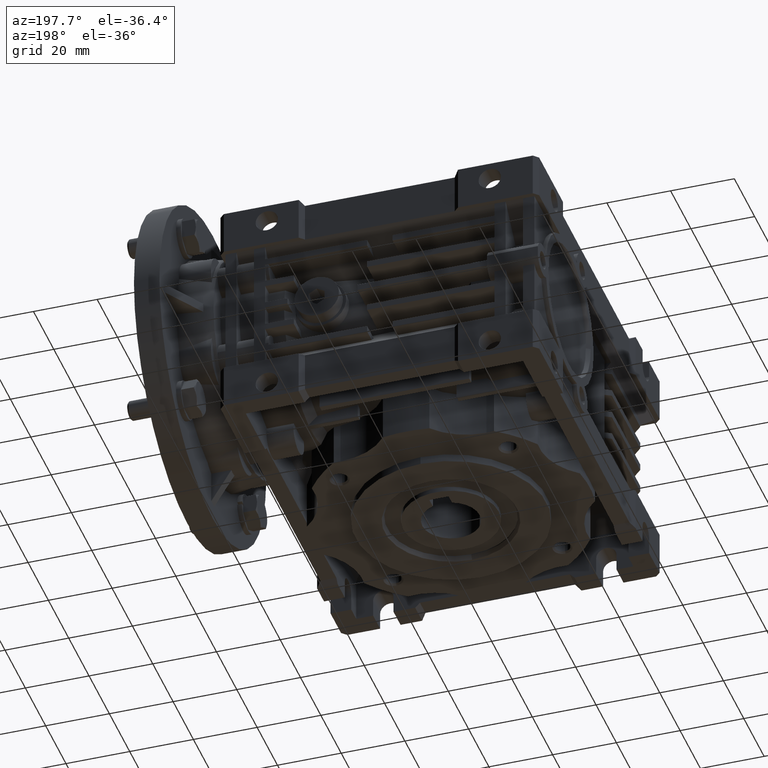
[diagram: clean part render]
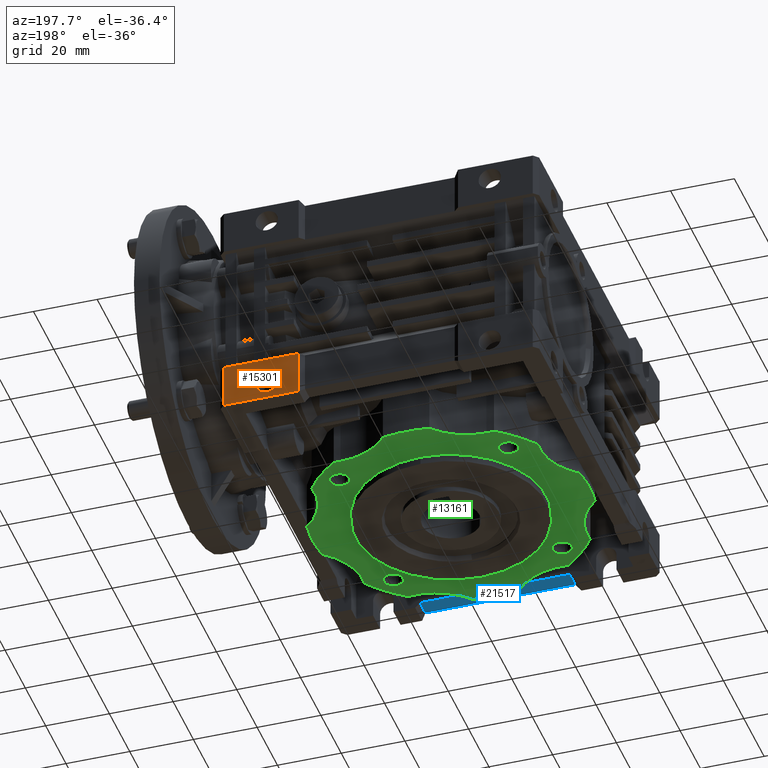
[diagram: same view with three faces highlighted in distinct colors, each labeled with its STEP entity id]
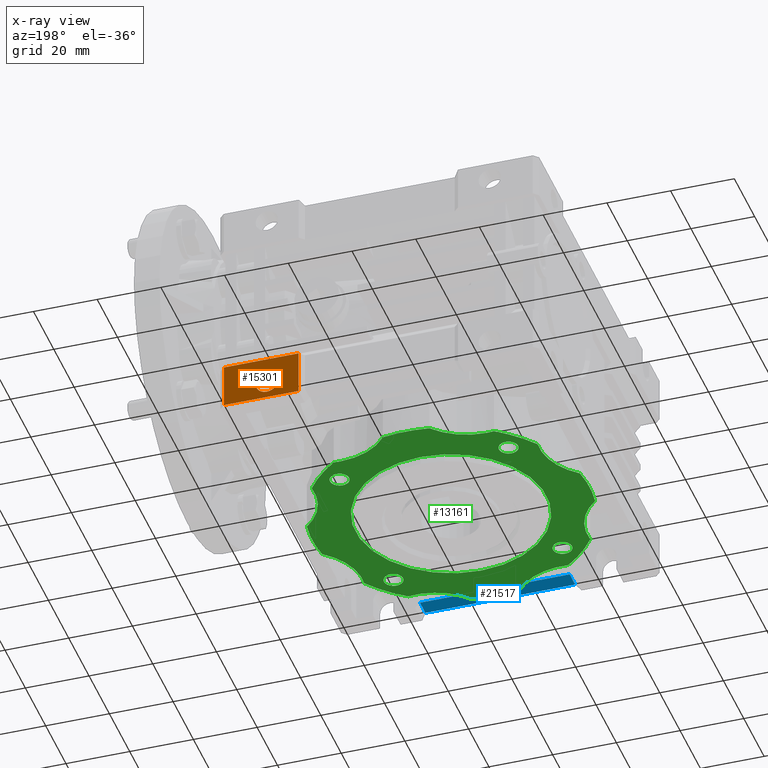
[diagram: x-ray of the same camera — body ghosted, the three highlighted faces saturated]
A machine part, auxiliary view with three faces highlighted in distinct colors.
The next image is the same camera in x-ray (body ghosted, the three faces saturated) — at least one of them is partly hidden behind the body in this view.
Their STEP definitions:

[orange] entity #15301 — the highlighted planar face has unit normal (0, -1, 0).
#170 = CARTESIAN_POINT ( 'NONE',  ( 35.00000000000000000, 71.50000000000000000, -30.00000000000000000 ) ) ;
#240 = DIRECTION ( 'NONE',  ( 0.000000000000000000, 0.000000000000000000, -1.000000000000000000 ) ) ;
#820 = FACE_OUTER_BOUND ( 'NONE', #12869, .T. ) ;
#2917 = DIRECTION ( 'NONE',  ( -1.000000000000000000, 0.000000000000000000, 0.000000000000000000 ) ) ;
#3432 = ORIENTED_EDGE ( 'NONE', *, *, #12341, .T. ) ;
#3450 = CARTESIAN_POINT ( 'NONE',  ( 35.00000000000000000, 71.50000000000000000, -30.00000000000000000 ) ) ;
#3746 = LINE ( 'NONE', #13194, #11059 ) ;
#5382 = CARTESIAN_POINT ( 'NONE',  ( 25.00000000000000000, 71.50000000000000000, -21.50000000000000000 ) ) ;
#5446 = PLANE ( 'NONE',  #15915 ) ;
#6375 = DIRECTION ( 'NONE',  ( 1.000000000000000000, 0.000000000000000000, 0.000000000000000000 ) ) ;
#8641 = VERTEX_POINT ( 'NONE', #20218 ) ;
#8704 = CARTESIAN_POINT ( 'NONE',  ( 35.00000000000000000, 71.50000000000000000, -33.50000000000000000 ) ) ;
#8834 = EDGE_LOOP ( 'NONE', ( #3432, #13708 ) ) ;
#9096 = CARTESIAN_POINT ( 'NONE',  ( 25.00000000000000000, 71.50000000000000000, -35.50000000000000000 ) ) ;
#9365 = VERTEX_POINT ( 'NONE', #26944 ) ;
#10057 = EDGE_CURVE ( 'NONE', #12918, #8641, #21300, .T. ) ;
#11059 = VECTOR ( 'NONE', #6375, 1000.000000000000000 ) ;
#11415 = LINE ( 'NONE', #20829, #16215 ) ;
#12341 = EDGE_CURVE ( 'NONE', #27501, #29313, #13606, .T. ) ;
#12806 = CARTESIAN_POINT ( 'NONE',  ( 25.00000000000000000, 71.50000000000000000, -21.50000000000000000 ) ) ;
#12869 = EDGE_LOOP ( 'NONE', ( #15129, #19123, #28783, #20358 ) ) ;
#12894 = DIRECTION ( 'NONE',  ( 0.000000000000000000, -1.000000000000000000, 0.000000000000000000 ) ) ;
#12918 = VERTEX_POINT ( 'NONE', #12806 ) ;
#13194 = CARTESIAN_POINT ( 'NONE',  ( 0.000000000000000000, 71.50000000000000000, -35.50000000000000000 ) ) ;
#13606 = CIRCLE ( 'NONE', #22995, 3.499999999999999556 ) ;
#13708 = ORIENTED_EDGE ( 'NONE', *, *, #27151, .T. ) ;
#14978 = LINE ( 'NONE', #5382, #28491 ) ;
#15129 = ORIENTED_EDGE ( 'NONE', *, *, #27878, .T. ) ;
#15301 = ADVANCED_FACE ( 'NONE', ( #25778, #820 ), #5446, .F. ) ;
#15915 = AXIS2_PLACEMENT_3D ( 'NONE', #30569, #16329, #18654 ) ;
#16215 = VECTOR ( 'NONE', #240, 1000.000000000000000 ) ;
#16329 = DIRECTION ( 'NONE',  ( 0.000000000000000000, -1.000000000000000000, 0.000000000000000000 ) ) ;
#17249 = EDGE_CURVE ( 'NONE', #8641, #19751, #3746, .T. ) ;
#18090 = CARTESIAN_POINT ( 'NONE',  ( 48.50000000000000000, 71.50000000000000000, -35.50000000000000000 ) ) ;
#18646 = AXIS2_PLACEMENT_3D ( 'NONE', #170, #21357, #19022 ) ;
#18654 = DIRECTION ( 'NONE',  ( 0.000000000000000000, 0.000000000000000000, -1.000000000000000000 ) ) ;
#18978 = CARTESIAN_POINT ( 'NONE',  ( 35.00000000000000000, 71.50000000000000000, -26.50000000000000000 ) ) ;
#19022 = DIRECTION ( 'NONE',  ( 0.000000000000000000, 0.000000000000000000, 1.000000000000000000 ) ) ;
#19123 = ORIENTED_EDGE ( 'NONE', *, *, #17249, .F. ) ;
#19751 = VERTEX_POINT ( 'NONE', #18090 ) ;
#20218 = CARTESIAN_POINT ( 'NONE',  ( 25.00000000000000000, 71.50000000000000000, -35.50000000000000000 ) ) ;
#20358 = ORIENTED_EDGE ( 'NONE', *, *, #22069, .F. ) ;
#20829 = CARTESIAN_POINT ( 'NONE',  ( 48.50000000000000000, 71.50000000000000000, -35.50000000000000000 ) ) ;
#20954 = VECTOR ( 'NONE', #28422, 1000.000000000000000 ) ;
#21300 = LINE ( 'NONE', #9096, #20954 ) ;
#21357 = DIRECTION ( 'NONE',  ( 0.000000000000000000, -1.000000000000000000, 0.000000000000000000 ) ) ;
#22069 = EDGE_CURVE ( 'NONE', #9365, #12918, #14978, .T. ) ;
#22995 = AXIS2_PLACEMENT_3D ( 'NONE', #3450, #12894, #29760 ) ;
#25778 = FACE_BOUND ( 'NONE', #8834, .T. ) ;
#26944 = CARTESIAN_POINT ( 'NONE',  ( 48.50000000000000000, 71.50000000000000000, -21.50000000000000000 ) ) ;
#27151 = EDGE_CURVE ( 'NONE', #29313, #27501, #27580, .T. ) ;
#27501 = VERTEX_POINT ( 'NONE', #18978 ) ;
#27580 = CIRCLE ( 'NONE', #18646, 3.499999999999999556 ) ;
#27878 = EDGE_CURVE ( 'NONE', #9365, #19751, #11415, .T. ) ;
#28422 = DIRECTION ( 'NONE',  ( 0.000000000000000000, 0.000000000000000000, -1.000000000000000000 ) ) ;
#28491 = VECTOR ( 'NONE', #2917, 1000.000000000000000 ) ;
#28783 = ORIENTED_EDGE ( 'NONE', *, *, #10057, .F. ) ;
#29313 = VERTEX_POINT ( 'NONE', #8704 ) ;
#29760 = DIRECTION ( 'NONE',  ( 0.000000000000000000, 0.000000000000000000, 1.000000000000000000 ) ) ;
#30569 = CARTESIAN_POINT ( 'NONE',  ( 25.00000000000000000, 71.50000000000000000, -35.50000000000000000 ) ) ;

[blue] entity #21517 — the highlighted planar face has unit normal (0, 0, 1).
#167 = DIRECTION ( 'NONE',  ( 0.000000000000000000, -1.000000000000000000, 0.000000000000000000 ) ) ;
#892 = DIRECTION ( 'NONE',  ( -1.000000000000000000, 0.000000000000000000, 0.000000000000000000 ) ) ;
#2164 = DIRECTION ( 'NONE',  ( 0.000000000000000000, -1.000000000000000000, 0.000000000000000000 ) ) ;
#2321 = CARTESIAN_POINT ( 'NONE',  ( -23.50000000000000000, 100.0000000000000000, -34.00000000000000000 ) ) ;
#5697 = ORIENTED_EDGE ( 'NONE', *, *, #29850, .F. ) ;
#5866 = ORIENTED_EDGE ( 'NONE', *, *, #25503, .F. ) ;
#6013 = EDGE_CURVE ( 'NONE', #24443, #23479, #29531, .T. ) ;
#6447 = LINE ( 'NONE', #21125, #19645 ) ;
#6689 = LINE ( 'NONE', #27753, #15449 ) ;
#6807 = CARTESIAN_POINT ( 'NONE',  ( -7.372574772901430151E-15, 3.955169525227120175E-13, -34.00000000000000000 ) ) ;
#6956 = EDGE_CURVE ( 'NONE', #27155, #29624, #6689, .T. ) ;
#7597 = AXIS2_PLACEMENT_3D ( 'NONE', #6807, #14067, #2164 ) ;
#7686 = VECTOR ( 'NONE', #19463, 1000.000000000000000 ) ;
#8211 = AXIS2_PLACEMENT_3D ( 'NONE', #24307, #17619, #29260 ) ;
#8497 = VECTOR ( 'NONE', #892, 1000.000000000000000 ) ;
#8592 = FACE_OUTER_BOUND ( 'NONE', #17906, .T. ) ;
#8609 = CIRCLE ( 'NONE', #7597, 43.58999999999999631 ) ;
#9447 = LINE ( 'NONE', #2321, #14838 ) ;
#9559 = EDGE_CURVE ( 'NONE', #23479, #13875, #8609, .T. ) ;
#10044 = CARTESIAN_POINT ( 'NONE',  ( 23.50000000000000000, 100.0000000000000000, -34.00000000000000000 ) ) ;
#11692 = CIRCLE ( 'NONE', #8211, 43.58999999999999631 ) ;
#11814 = ORIENTED_EDGE ( 'NONE', *, *, #6013, .F. ) ;
#12814 = CARTESIAN_POINT ( 'NONE',  ( 23.50000000000000000, -43.10000000000000142, -34.00000000000000000 ) ) ;
#13075 = PLANE ( 'NONE',  #13150 ) ;
#13150 = AXIS2_PLACEMENT_3D ( 'NONE', #20177, #29938, #22671 ) ;
#13342 = VERTEX_POINT ( 'NONE', #19880 ) ;
#13875 = VERTEX_POINT ( 'NONE', #22937 ) ;
#14067 = DIRECTION ( 'NONE',  ( 0.000000000000000000, 0.000000000000000000, -1.000000000000000000 ) ) ;
#14240 = ORIENTED_EDGE ( 'NONE', *, *, #20130, .F. ) ;
#14533 = CARTESIAN_POINT ( 'NONE',  ( -23.50000000000000000, -48.50000000000000000, -34.00000000000000000 ) ) ;
#14838 = VECTOR ( 'NONE', #167, 1000.000000000000000 ) ;
#15077 = CARTESIAN_POINT ( 'NONE',  ( -23.50000000000000000, -43.10000000000000142, -34.00000000000000000 ) ) ;
#15449 = VECTOR ( 'NONE', #16120, 1000.000000000000000 ) ;
#16025 = DIRECTION ( 'NONE',  ( -1.000000000000000000, 0.000000000000000000, 0.000000000000000000 ) ) ;
#16120 = DIRECTION ( 'NONE',  ( 1.000000000000000000, 0.000000000000000000, 0.000000000000000000 ) ) ;
#17619 = DIRECTION ( 'NONE',  ( 0.000000000000000000, 0.000000000000000000, -1.000000000000000000 ) ) ;
#17906 = EDGE_LOOP ( 'NONE', ( #11814, #14240, #26170, #5697, #18286, #5866, #18759 ) ) ;
#18286 = ORIENTED_EDGE ( 'NONE', *, *, #23147, .F. ) ;
#18759 = ORIENTED_EDGE ( 'NONE', *, *, #9559, .F. ) ;
#18908 = VERTEX_POINT ( 'NONE', #15077 ) ;
#19463 = DIRECTION ( 'NONE',  ( 0.000000000000000000, 1.000000000000000000, 0.000000000000000000 ) ) ;
#19645 = VECTOR ( 'NONE', #16025, 1000.000000000000000 ) ;
#19880 = CARTESIAN_POINT ( 'NONE',  ( -6.517522535442499709, -43.10000000000000142, -34.00000000000000000 ) ) ;
#20130 = EDGE_CURVE ( 'NONE', #29624, #24443, #23953, .T. ) ;
#20177 = CARTESIAN_POINT ( 'NONE',  ( 23.50000000000000000, 100.0000000000000000, -34.00000000000000000 ) ) ;
#20410 = CARTESIAN_POINT ( 'NONE',  ( 23.50000000000000000, -43.10000000000000142, -34.00000000000000000 ) ) ;
#21125 = CARTESIAN_POINT ( 'NONE',  ( 43.50000000000000000, -43.10000000000000142, -34.00000000000000000 ) ) ;
#21517 = ADVANCED_FACE ( 'NONE', ( #8592 ), #13075, .F. ) ;
#22670 = CARTESIAN_POINT ( 'NONE',  ( 6.517522535442470399, -43.10000000000000142, -34.00000000000000000 ) ) ;
#22671 = DIRECTION ( 'NONE',  ( 1.000000000000000000, 0.000000000000000000, 0.000000000000000000 ) ) ;
#22937 = CARTESIAN_POINT ( 'NONE',  ( -7.372574772901430151E-15, -43.58999999999959840, -34.00000000000000000 ) ) ;
#23147 = EDGE_CURVE ( 'NONE', #13342, #18908, #6447, .T. ) ;
#23479 = VERTEX_POINT ( 'NONE', #22670 ) ;
#23953 = LINE ( 'NONE', #10044, #7686 ) ;
#24307 = CARTESIAN_POINT ( 'NONE',  ( -7.372574772901430151E-15, 3.955169525227120175E-13, -34.00000000000000000 ) ) ;
#24443 = VERTEX_POINT ( 'NONE', #20410 ) ;
#25212 = CARTESIAN_POINT ( 'NONE',  ( 23.50000000000000000, -48.50000000000000000, -34.00000000000000000 ) ) ;
#25503 = EDGE_CURVE ( 'NONE', #13875, #13342, #11692, .T. ) ;
#26170 = ORIENTED_EDGE ( 'NONE', *, *, #6956, .F. ) ;
#27155 = VERTEX_POINT ( 'NONE', #14533 ) ;
#27753 = CARTESIAN_POINT ( 'NONE',  ( 23.50000000000000000, -48.50000000000000000, -34.00000000000000000 ) ) ;
#29260 = DIRECTION ( 'NONE',  ( 0.000000000000000000, -1.000000000000000000, 0.000000000000000000 ) ) ;
#29531 = LINE ( 'NONE', #12814, #8497 ) ;
#29624 = VERTEX_POINT ( 'NONE', #25212 ) ;
#29850 = EDGE_CURVE ( 'NONE', #18908, #27155, #9447, .T. ) ;
#29938 = DIRECTION ( 'NONE',  ( 0.000000000000000000, 0.000000000000000000, 1.000000000000000000 ) ) ;

[green] entity #13161 — the highlighted planar face has unit normal (0, 0, -1).
#93 = EDGE_CURVE ( 'NONE', #4144, #23556, #20167, .T. ) ;
#115 = CARTESIAN_POINT ( 'NONE',  ( 43.03360430193625064, 6.942405979512800585, -36.50000000000000000 ) ) ;
#156 = ORIENTED_EDGE ( 'NONE', *, *, #18141, .T. ) ;
#282 = VERTEX_POINT ( 'NONE', #20504 ) ;
#328 = CARTESIAN_POINT ( 'NONE',  ( 22.47639560495480282, -55.63103127400720638, -36.50000000000000000 ) ) ;
#362 = DIRECTION ( 'NONE',  ( 0.000000000000000000, 0.000000000000000000, -1.000000000000000000 ) ) ;
#695 = CARTESIAN_POINT ( 'NONE',  ( -7.372574772901430151E-15, 3.955169525227120175E-13, -36.50000000000000000 ) ) ;
#713 = DIRECTION ( 'NONE',  ( 0.000000000000000000, 0.000000000000000000, 1.000000000000000000 ) ) ;
#738 = CARTESIAN_POINT ( 'NONE',  ( -7.372574772901430151E-15, -43.58999999999959840, -36.50000000000000000 ) ) ;
#850 = EDGE_CURVE ( 'NONE', #10138, #15054, #8343, .T. ) ;
#884 = VERTEX_POINT ( 'NONE', #4371 ) ;
#967 = DIRECTION ( 'NONE',  ( 0.000000000000000000, 0.000000000000000000, -1.000000000000000000 ) ) ;
#1156 = EDGE_LOOP ( 'NONE', ( #13334, #5986 ) ) ;
#1204 = CARTESIAN_POINT ( 'NONE',  ( 7.692388570194459874, 42.90588838475609634, -36.50000000000000000 ) ) ;
#1217 = DIRECTION ( 'NONE',  ( 0.000000000000000000, 0.000000000000000000, 1.000000000000000000 ) ) ;
#1291 = DIRECTION ( 'NONE',  ( 0.000000000000000000, 0.000000000000000000, 1.000000000000000000 ) ) ;
#1295 = VERTEX_POINT ( 'NONE', #2012 ) ;
#1447 = AXIS2_PLACEMENT_3D ( 'NONE', #6072, #967, #10892 ) ;
#1534 = AXIS2_PLACEMENT_3D ( 'NONE', #8261, #1291, #8410 ) ;
#1694 = EDGE_LOOP ( 'NONE', ( #9893, #14445 ) ) ;
#1733 = DIRECTION ( 'NONE',  ( 0.000000000000000000, 0.000000000000000000, -1.000000000000000000 ) ) ;
#1966 = DIRECTION ( 'NONE',  ( 0.000000000000000000, 0.000000000000000000, 1.000000000000000000 ) ) ;
#2012 = CARTESIAN_POINT ( 'NONE',  ( 23.44386770935640030, 35.23029120714639362, -36.50000000000000000 ) ) ;
#2034 = DIRECTION ( 'NONE',  ( 0.000000000000000000, -1.000000000000000000, 0.000000000000000000 ) ) ;
#2473 = CIRCLE ( 'NONE', #21260, 30.00000000000000000 ) ;
#2562 = ORIENTED_EDGE ( 'NONE', *, *, #12878, .T. ) ;
#2717 = CARTESIAN_POINT ( 'NONE',  ( -26.51650429449550117, -26.51650429449550117, -36.49999999998955502 ) ) ;
#2731 = AXIS2_PLACEMENT_3D ( 'NONE', #328, #29259, #9766 ) ;
#2963 = CIRCLE ( 'NONE', #27690, 2.999999999947291496 ) ;
#2988 = CARTESIAN_POINT ( 'NONE',  ( -35.33837576666120128, 25.52033107493420161, -36.50000000000000000 ) ) ;
#3006 = CIRCLE ( 'NONE', #1534, 20.00000000000000355 ) ;
#3273 = CIRCLE ( 'NONE', #23023, 2.999999999947291496 ) ;
#3292 = DIRECTION ( 'NONE',  ( 0.000000000000000000, 0.000000000000000000, -1.000000000000000000 ) ) ;
#3297 = CARTESIAN_POINT ( 'NONE',  ( 1.387778780781449967E-13, -1.734723475976809871E-13, -36.50000000000000000 ) ) ;
#3350 = EDGE_LOOP ( 'NONE', ( #2562, #28027 ) ) ;
#3370 = DIRECTION ( 'NONE',  ( 0.000000000000000000, 0.000000000000000000, 1.000000000000000000 ) ) ;
#3454 = CIRCLE ( 'NONE', #25200, 20.00000000000000000 ) ;
#3751 = AXIS2_PLACEMENT_3D ( 'NONE', #2717, #26246, #15237 ) ;
#3823 = DIRECTION ( 'NONE',  ( 0.000000000000000000, -1.000000000000000000, 0.000000000000000000 ) ) ;
#3832 = DIRECTION ( 'NONE',  ( 0.000000000000000000, -1.000000000000000000, 0.000000000000000000 ) ) ;
#3871 = DIRECTION ( 'NONE',  ( 0.000000000000000000, -1.000000000000000000, 0.000000000000000000 ) ) ;
#3901 = AXIS2_PLACEMENT_3D ( 'NONE', #7008, #4677, #28062 ) ;
#3915 = EDGE_CURVE ( 'NONE', #27377, #16815, #14285, .T. ) ;
#3918 = CIRCLE ( 'NONE', #29130, 2.999999999947291496 ) ;
#4000 = CIRCLE ( 'NONE', #18828, 43.58999999999999631 ) ;
#4144 = VERTEX_POINT ( 'NONE', #17496 ) ;
#4227 = EDGE_CURVE ( 'NONE', #15054, #25896, #14766, .T. ) ;
#4352 = EDGE_CURVE ( 'NONE', #7769, #16216, #3454, .T. ) ;
#4371 = CARTESIAN_POINT ( 'NONE',  ( 26.51650429449550117, -23.51650429452782731, -36.49999999998955502 ) ) ;
#4547 = CARTESIAN_POINT ( 'NONE',  ( -6.942405979512780156, 43.03360430193625064, -36.50000000000000000 ) ) ;
#4566 = EDGE_CURVE ( 'NONE', #23556, #4144, #2963, .T. ) ;
#4600 = AXIS2_PLACEMENT_3D ( 'NONE', #6147, #27210, #13122 ) ;
#4677 = DIRECTION ( 'NONE',  ( 0.000000000000000000, 0.000000000000000000, -1.000000000000000000 ) ) ;
#4713 = CIRCLE ( 'NONE', #2731, 20.00000000000000355 ) ;
#4778 = VERTEX_POINT ( 'NONE', #115 ) ;
#4871 = DIRECTION ( 'NONE',  ( 0.000000000000000000, -1.000000000000000000, 0.000000000000000000 ) ) ;
#5029 = FACE_BOUND ( 'NONE', #1156, .T. ) ;
#5117 = CARTESIAN_POINT ( 'NONE',  ( 26.51650429449550117, -26.51650429449550117, -36.49999999998955502 ) ) ;
#5248 = EDGE_CURVE ( 'NONE', #8774, #7769, #30189, .T. ) ;
#5346 = ORIENTED_EDGE ( 'NONE', *, *, #4352, .T. ) ;
#5348 = EDGE_CURVE ( 'NONE', #12241, #17554, #3006, .T. ) ;
#5384 = CARTESIAN_POINT ( 'NONE',  ( -42.90588838475604661, 7.692388570194389708, -36.50000000000000000 ) ) ;
#5774 = ORIENTED_EDGE ( 'NONE', *, *, #7840, .T. ) ;
#5779 = EDGE_CURVE ( 'NONE', #24727, #18664, #4000, .T. ) ;
#5825 = DIRECTION ( 'NONE',  ( 0.000000000000000000, 0.000000000000000000, -1.000000000000000000 ) ) ;
#5986 = ORIENTED_EDGE ( 'NONE', *, *, #12622, .T. ) ;
#6001 = VERTEX_POINT ( 'NONE', #738 ) ;
#6056 = EDGE_CURVE ( 'NONE', #1295, #24727, #25281, .T. ) ;
#6072 = CARTESIAN_POINT ( 'NONE',  ( 2.341876692568689893E-14, 2.081668171172170091E-14, -36.50000000000000000 ) ) ;
#6147 = CARTESIAN_POINT ( 'NONE',  ( 0.000000000000000000, 0.000000000000000000, -36.50000000000000000 ) ) ;
#6469 = DIRECTION ( 'NONE',  ( 0.000000000000000000, 0.000000000000000000, 1.000000000000000000 ) ) ;
#6567 = CIRCLE ( 'NONE', #4600, 30.00000000000000000 ) ;
#6864 = CARTESIAN_POINT ( 'NONE',  ( -26.51650429449550117, -26.51650429449550117, -36.49999999998955502 ) ) ;
#6987 = EDGE_LOOP ( 'NONE', ( #14364, #16759 ) ) ;
#7008 = CARTESIAN_POINT ( 'NONE',  ( -7.372574772901430151E-15, 3.955169525227120175E-13, -36.50000000000000000 ) ) ;
#7082 = DIRECTION ( 'NONE',  ( 0.000000000000000000, 0.000000000000000000, 1.000000000000000000 ) ) ;
#7133 = DIRECTION ( 'NONE',  ( 0.000000000000000000, 0.000000000000000000, 1.000000000000000000 ) ) ;
#7196 = VERTEX_POINT ( 'NONE', #10549 ) ;
#7769 = VERTEX_POINT ( 'NONE', #5384 ) ;
#7840 = EDGE_CURVE ( 'NONE', #17915, #8774, #18852, .T. ) ;
#8006 = CARTESIAN_POINT ( 'NONE',  ( 26.51650429449550117, 26.51650429449550117, -36.49999999998955502 ) ) ;
#8039 = VERTEX_POINT ( 'NONE', #28274 ) ;
#8261 = CARTESIAN_POINT ( 'NONE',  ( 55.23029120714640072, -23.44386770935640030, -36.50000000000000000 ) ) ;
#8343 = CIRCLE ( 'NONE', #25637, 20.00000000000000355 ) ;
#8349 = ORIENTED_EDGE ( 'NONE', *, *, #20961, .T. ) ;
#8354 = CARTESIAN_POINT ( 'NONE',  ( -26.51650429449550117, -29.51650429446317503, -36.49999999998955502 ) ) ;
#8410 = DIRECTION ( 'NONE',  ( 0.000000000000000000, -1.000000000000000000, 0.000000000000000000 ) ) ;
#8462 = ORIENTED_EDGE ( 'NONE', *, *, #15679, .T. ) ;
#8486 = AXIS2_PLACEMENT_3D ( 'NONE', #8627, #5825, #27203 ) ;
#8627 = CARTESIAN_POINT ( 'NONE',  ( -1.942890293094019654E-13, 0.000000000000000000, -36.50000000000000000 ) ) ;
#8684 = EDGE_CURVE ( 'NONE', #13346, #30039, #6567, .T. ) ;
#8774 = VERTEX_POINT ( 'NONE', #9542 ) ;
#9020 = ORIENTED_EDGE ( 'NONE', *, *, #4566, .T. ) ;
#9089 = CARTESIAN_POINT ( 'NONE',  ( -26.51650429449550117, 26.51650429449550117, -36.49999999998955502 ) ) ;
#9292 = EDGE_CURVE ( 'NONE', #18664, #4778, #26848, .T. ) ;
#9542 = CARTESIAN_POINT ( 'NONE',  ( -43.03360430193625064, -6.942405979512800585, -36.50000000000000000 ) ) ;
#9724 = CIRCLE ( 'NONE', #27038, 20.00000000000000355 ) ;
#9766 = DIRECTION ( 'NONE',  ( 0.000000000000000000, -1.000000000000000000, 0.000000000000000000 ) ) ;
#9840 = FACE_BOUND ( 'NONE', #3350, .T. ) ;
#9861 = CARTESIAN_POINT ( 'NONE',  ( -22.47639560495469979, 35.63103127400729875, -36.50000000000000000 ) ) ;
#9893 = ORIENTED_EDGE ( 'NONE', *, *, #29348, .F. ) ;
#10106 = CARTESIAN_POINT ( 'NONE',  ( 26.51650429449550117, -29.51650429446317503, -36.49999999998955502 ) ) ;
#10138 = VERTEX_POINT ( 'NONE', #9861 ) ;
#10196 = CIRCLE ( 'NONE', #28965, 2.999999999967674302 ) ;
#10425 = CARTESIAN_POINT ( 'NONE',  ( 26.51650429449550117, 29.51650429444279311, -36.49999999998955502 ) ) ;
#10549 = CARTESIAN_POINT ( 'NONE',  ( 24.89970450818785253, -35.77838475120044848, -36.50000000000000000 ) ) ;
#10551 = CARTESIAN_POINT ( 'NONE',  ( -1.908195823574489823E-13, -1.595945597898659750E-13, -36.50000000000000000 ) ) ;
#10575 = AXIS2_PLACEMENT_3D ( 'NONE', #24485, #3292, #12736 ) ;
#10662 = DIRECTION ( 'NONE',  ( 0.000000000000000000, -1.000000000000000000, 0.000000000000000000 ) ) ;
#10677 = EDGE_CURVE ( 'NONE', #16875, #19620, #27451, .T. ) ;
#10785 = EDGE_LOOP ( 'NONE', ( #9020, #19364 ) ) ;
#10892 = DIRECTION ( 'NONE',  ( 0.000000000000000000, -1.000000000000000000, 0.000000000000000000 ) ) ;
#11048 = EDGE_CURVE ( 'NONE', #7196, #28015, #4713, .T. ) ;
#11155 = ORIENTED_EDGE ( 'NONE', *, *, #850, .T. ) ;
#11671 = CIRCLE ( 'NONE', #3751, 2.999999999967674302 ) ;
#11750 = ORIENTED_EDGE ( 'NONE', *, *, #5248, .T. ) ;
#12101 = CARTESIAN_POINT ( 'NONE',  ( -25.52033107493414832, -35.33837576666125102, -36.50000000000000000 ) ) ;
#12106 = ORIENTED_EDGE ( 'NONE', *, *, #30412, .T. ) ;
#12116 = AXIS2_PLACEMENT_3D ( 'NONE', #21705, #22330, #19378 ) ;
#12241 = VERTEX_POINT ( 'NONE', #15707 ) ;
#12454 = AXIS2_PLACEMENT_3D ( 'NONE', #24576, #3370, #20220 ) ;
#12514 = CARTESIAN_POINT ( 'NONE',  ( 25.52033107493420161, 35.33837576666130076, -36.50000000000000000 ) ) ;
#12622 = EDGE_CURVE ( 'NONE', #16815, #27377, #11671, .T. ) ;
#12635 = DIRECTION ( 'NONE',  ( 0.000000000000000000, -1.000000000000000000, 0.000000000000000000 ) ) ;
#12736 = DIRECTION ( 'NONE',  ( 0.000000000000000000, -1.000000000000000000, 0.000000000000000000 ) ) ;
#12878 = EDGE_CURVE ( 'NONE', #8039, #19329, #3273, .T. ) ;
#13076 = CARTESIAN_POINT ( 'NONE',  ( -26.51650429449550117, -23.51650429452782731, -36.49999999998955502 ) ) ;
#13122 = DIRECTION ( 'NONE',  ( 0.000000000000000000, 1.000000000000000000, 0.000000000000000000 ) ) ;
#13161 = ADVANCED_FACE ( 'NONE', ( #16627, #9840, #14468, #5029, #24216, #26558 ), #19419, .T. ) ;
#13334 = ORIENTED_EDGE ( 'NONE', *, *, #3915, .T. ) ;
#13346 = VERTEX_POINT ( 'NONE', #22369 ) ;
#13598 = VERTEX_POINT ( 'NONE', #10106 ) ;
#13660 = AXIS2_PLACEMENT_3D ( 'NONE', #26079, #14925, #4871 ) ;
#14285 = CIRCLE ( 'NONE', #16747, 2.999999999967674302 ) ;
#14327 = ORIENTED_EDGE ( 'NONE', *, *, #5348, .T. ) ;
#14364 = ORIENTED_EDGE ( 'NONE', *, *, #20736, .T. ) ;
#14445 = ORIENTED_EDGE ( 'NONE', *, *, #8684, .F. ) ;
#14468 = FACE_BOUND ( 'NONE', #10785, .T. ) ;
#14766 = CIRCLE ( 'NONE', #1447, 43.58999999999999631 ) ;
#14925 = DIRECTION ( 'NONE',  ( 0.000000000000000000, 0.000000000000000000, -1.000000000000000000 ) ) ;
#15054 = VERTEX_POINT ( 'NONE', #4547 ) ;
#15237 = DIRECTION ( 'NONE',  ( 0.000000000000000000, -1.000000000000000000, 0.000000000000000000 ) ) ;
#15466 = ORIENTED_EDGE ( 'NONE', *, *, #11048, .T. ) ;
#15507 = CARTESIAN_POINT ( 'NONE',  ( 0.000000000000000000, 0.000000000000000000, -36.50000000000000000 ) ) ;
#15679 = EDGE_CURVE ( 'NONE', #19620, #17915, #27312, .T. ) ;
#15707 = CARTESIAN_POINT ( 'NONE',  ( 42.90588838475609634, -7.692388570194349739, -36.50000000000000000 ) ) ;
#15893 = CARTESIAN_POINT ( 'NONE',  ( 35.77838475120044848, 24.89970450818785253, -36.50000000000000000 ) ) ;
#15964 = CARTESIAN_POINT ( 'NONE',  ( 2.775557561562889773E-14, 0.000000000000000000, -36.50000000000000000 ) ) ;
#16028 = AXIS2_PLACEMENT_3D ( 'NONE', #27929, #27632, #17852 ) ;
#16216 = VERTEX_POINT ( 'NONE', #2988 ) ;
#16312 = ORIENTED_EDGE ( 'NONE', *, *, #5779, .T. ) ;
#16435 = DIRECTION ( 'NONE',  ( 0.000000000000000000, -1.000000000000000000, 0.000000000000000000 ) ) ;
#16627 = FACE_BOUND ( 'NONE', #6987, .T. ) ;
#16719 = CARTESIAN_POINT ( 'NONE',  ( -22.47639560495469979, 55.63103127400729875, -36.50000000000000000 ) ) ;
#16747 = AXIS2_PLACEMENT_3D ( 'NONE', #6864, #25887, #16435 ) ;
#16759 = ORIENTED_EDGE ( 'NONE', *, *, #20342, .T. ) ;
#16760 = ORIENTED_EDGE ( 'NONE', *, *, #28244, .T. ) ;
#16815 = VERTEX_POINT ( 'NONE', #13076 ) ;
#16875 = VERTEX_POINT ( 'NONE', #30240 ) ;
#16972 = CARTESIAN_POINT ( 'NONE',  ( -35.77838475120044848, -24.89970450818780279, -36.50000000000000000 ) ) ;
#17206 = EDGE_LOOP ( 'NONE', ( #5346, #22434, #8349, #11155, #19797, #24627, #22431, #16312, #30118, #12106, #14327, #156, #15466, #29379, #16760, #27534, #8462, #5774, #11750 ) ) ;
#17231 = DIRECTION ( 'NONE',  ( 0.000000000000000000, 0.000000000000000000, -1.000000000000000000 ) ) ;
#17260 = CIRCLE ( 'NONE', #19753, 43.58999999999999631 ) ;
#17314 = DIRECTION ( 'NONE',  ( 2.775557561562891351E-15, -1.000000000000000000, 0.000000000000000000 ) ) ;
#17419 = DIRECTION ( 'NONE',  ( 0.000000000000000000, 0.000000000000000000, 1.000000000000000000 ) ) ;
#17496 = CARTESIAN_POINT ( 'NONE',  ( -26.51650429449550117, 29.51650429444279311, -36.49999999998955502 ) ) ;
#17554 = VERTEX_POINT ( 'NONE', #29097 ) ;
#17852 = DIRECTION ( 'NONE',  ( 0.000000000000000000, -1.000000000000000000, 0.000000000000000000 ) ) ;
#17915 = VERTEX_POINT ( 'NONE', #16972 ) ;
#18104 = AXIS2_PLACEMENT_3D ( 'NONE', #5117, #21370, #25711 ) ;
#18141 = EDGE_CURVE ( 'NONE', #17554, #7196, #25370, .T. ) ;
#18351 = CARTESIAN_POINT ( 'NONE',  ( 26.51650429449550117, 26.51650429449550117, -36.49999999998955502 ) ) ;
#18664 = VERTEX_POINT ( 'NONE', #15893 ) ;
#18828 = AXIS2_PLACEMENT_3D ( 'NONE', #10551, #19964, #3871 ) ;
#18852 = CIRCLE ( 'NONE', #21333, 20.00000000000000000 ) ;
#18992 = CARTESIAN_POINT ( 'NONE',  ( -55.23029120714640072, 23.44386770935640030, -36.50000000000000000 ) ) ;
#19042 = EDGE_CURVE ( 'NONE', #25896, #1295, #29390, .T. ) ;
#19155 = DIRECTION ( 'NONE',  ( 0.000000000000000000, -1.000000000000000000, 0.000000000000000000 ) ) ;
#19329 = VERTEX_POINT ( 'NONE', #10425 ) ;
#19364 = ORIENTED_EDGE ( 'NONE', *, *, #93, .T. ) ;
#19378 = DIRECTION ( 'NONE',  ( 0.000000000000000000, -1.000000000000000000, 0.000000000000000000 ) ) ;
#19419 = PLANE ( 'NONE',  #13660 ) ;
#19620 = VERTEX_POINT ( 'NONE', #12101 ) ;
#19753 = AXIS2_PLACEMENT_3D ( 'NONE', #3297, #362, #21550 ) ;
#19797 = ORIENTED_EDGE ( 'NONE', *, *, #4227, .T. ) ;
#19964 = DIRECTION ( 'NONE',  ( 0.000000000000000000, 0.000000000000000000, -1.000000000000000000 ) ) ;
#20167 = CIRCLE ( 'NONE', #30079, 2.999999999947291496 ) ;
#20220 = DIRECTION ( 'NONE',  ( 0.000000000000000000, -1.000000000000000000, 0.000000000000000000 ) ) ;
#20239 = AXIS2_PLACEMENT_3D ( 'NONE', #695, #17231, #26861 ) ;
#20342 = EDGE_CURVE ( 'NONE', #884, #13598, #10196, .T. ) ;
#20368 = DIRECTION ( 'NONE',  ( 0.000000000000000000, 0.000000000000000000, 1.000000000000000000 ) ) ;
#20504 = CARTESIAN_POINT ( 'NONE',  ( -24.89970450818770331, 35.77838475120049821, -36.50000000000000000 ) ) ;
#20736 = EDGE_CURVE ( 'NONE', #13598, #884, #30459, .T. ) ;
#20916 = AXIS2_PLACEMENT_3D ( 'NONE', #25450, #7133, #17314 ) ;
#20961 = EDGE_CURVE ( 'NONE', #282, #10138, #9724, .T. ) ;
#20990 = DIRECTION ( 'NONE',  ( 0.000000000000000000, -1.000000000000000000, 0.000000000000000000 ) ) ;
#21260 = AXIS2_PLACEMENT_3D ( 'NONE', #15507, #1733, #24946 ) ;
#21333 = AXIS2_PLACEMENT_3D ( 'NONE', #22419, #1217, #10662 ) ;
#21370 = DIRECTION ( 'NONE',  ( 0.000000000000000000, 0.000000000000000000, 1.000000000000000000 ) ) ;
#21550 = DIRECTION ( 'NONE',  ( 0.000000000000000000, -1.000000000000000000, 0.000000000000000000 ) ) ;
#21622 = CARTESIAN_POINT ( 'NONE',  ( -22.47639560495469979, 55.63103127400729875, -36.50000000000000000 ) ) ;
#21705 = CARTESIAN_POINT ( 'NONE',  ( -23.44386770935640030, -55.23029120714640072, -36.50000000000000000 ) ) ;
#21739 = CARTESIAN_POINT ( 'NONE',  ( 6.942405979512800585, -43.03360430193625064, -36.50000000000000000 ) ) ;
#22197 = CIRCLE ( 'NONE', #3901, 43.58999999999999631 ) ;
#22330 = DIRECTION ( 'NONE',  ( 0.000000000000000000, 0.000000000000000000, 1.000000000000000000 ) ) ;
#22369 = CARTESIAN_POINT ( 'NONE',  ( -3.673940397442059178E-15, -30.00000000000000000, -36.50000000000000000 ) ) ;
#22419 = CARTESIAN_POINT ( 'NONE',  ( -55.63103127400720638, -22.47639560495480282, -36.50000000000000000 ) ) ;
#22431 = ORIENTED_EDGE ( 'NONE', *, *, #6056, .T. ) ;
#22434 = ORIENTED_EDGE ( 'NONE', *, *, #29194, .T. ) ;
#22965 = CARTESIAN_POINT ( 'NONE',  ( -26.51650429449550117, 23.51650429454820923, -36.49999999998955502 ) ) ;
#23023 = AXIS2_PLACEMENT_3D ( 'NONE', #8006, #17419, #26894 ) ;
#23304 = CIRCLE ( 'NONE', #8486, 43.58999999999999631 ) ;
#23480 = DIRECTION ( 'NONE',  ( 1.422473250300981502E-14, -1.000000000000000000, 0.000000000000000000 ) ) ;
#23556 = VERTEX_POINT ( 'NONE', #22965 ) ;
#23621 = CARTESIAN_POINT ( 'NONE',  ( -26.51650429449550117, 26.51650429449550117, -36.49999999998955502 ) ) ;
#24216 = FACE_BOUND ( 'NONE', #1694, .T. ) ;
#24323 = AXIS2_PLACEMENT_3D ( 'NONE', #15964, #25408, #2034 ) ;
#24485 = CARTESIAN_POINT ( 'NONE',  ( -3.191891195797330102E-13, 3.400058012914539886E-13, -36.50000000000000000 ) ) ;
#24576 = CARTESIAN_POINT ( 'NONE',  ( 23.44386770935640030, 55.23029120714640072, -36.50000000000000000 ) ) ;
#24627 = ORIENTED_EDGE ( 'NONE', *, *, #19042, .T. ) ;
#24727 = VERTEX_POINT ( 'NONE', #12514 ) ;
#24903 = CARTESIAN_POINT ( 'NONE',  ( 0.000000000000000000, 30.00000000000000000, -36.50000000000000000 ) ) ;
#24946 = DIRECTION ( 'NONE',  ( 0.000000000000000000, 1.000000000000000000, 0.000000000000000000 ) ) ;
#25200 = AXIS2_PLACEMENT_3D ( 'NONE', #18992, #28451, #19155 ) ;
#25281 = CIRCLE ( 'NONE', #12454, 20.00000000000000355 ) ;
#25370 = CIRCLE ( 'NONE', #10575, 43.59000000000049369 ) ;
#25408 = DIRECTION ( 'NONE',  ( 0.000000000000000000, 0.000000000000000000, -1.000000000000000000 ) ) ;
#25450 = CARTESIAN_POINT ( 'NONE',  ( 55.63103127400720638, 22.47639560495480282, -36.50000000000000000 ) ) ;
#25637 = AXIS2_PLACEMENT_3D ( 'NONE', #16719, #26029, #28501 ) ;
#25688 = CIRCLE ( 'NONE', #20239, 43.58999999999999631 ) ;
#25711 = DIRECTION ( 'NONE',  ( 0.000000000000000000, -1.000000000000000000, 0.000000000000000000 ) ) ;
#25791 = CARTESIAN_POINT ( 'NONE',  ( 26.51650429449550117, -26.51650429449550117, -36.49999999998955502 ) ) ;
#25887 = DIRECTION ( 'NONE',  ( 0.000000000000000000, 0.000000000000000000, 1.000000000000000000 ) ) ;
#25896 = VERTEX_POINT ( 'NONE', #1204 ) ;
#26029 = DIRECTION ( 'NONE',  ( 0.000000000000000000, 0.000000000000000000, 1.000000000000000000 ) ) ;
#26079 = CARTESIAN_POINT ( 'NONE',  ( -11.23819780247730016, 27.81551563700350016, -36.50000000000000000 ) ) ;
#26246 = DIRECTION ( 'NONE',  ( 0.000000000000000000, 0.000000000000000000, 1.000000000000000000 ) ) ;
#26558 = FACE_OUTER_BOUND ( 'NONE', #17206, .T. ) ;
#26833 = DIRECTION ( 'NONE',  ( 0.000000000000000000, -1.000000000000000000, 0.000000000000000000 ) ) ;
#26848 = CIRCLE ( 'NONE', #20916, 20.00000000000000000 ) ;
#26861 = DIRECTION ( 'NONE',  ( 0.000000000000000000, -1.000000000000000000, 0.000000000000000000 ) ) ;
#26894 = DIRECTION ( 'NONE',  ( 0.000000000000000000, -1.000000000000000000, 0.000000000000000000 ) ) ;
#27038 = AXIS2_PLACEMENT_3D ( 'NONE', #21622, #7082, #23480 ) ;
#27203 = DIRECTION ( 'NONE',  ( 0.000000000000000000, -1.000000000000000000, 0.000000000000000000 ) ) ;
#27210 = DIRECTION ( 'NONE',  ( 0.000000000000000000, 0.000000000000000000, -1.000000000000000000 ) ) ;
#27312 = CIRCLE ( 'NONE', #24323, 43.58999999999999631 ) ;
#27377 = VERTEX_POINT ( 'NONE', #8354 ) ;
#27451 = CIRCLE ( 'NONE', #12116, 20.00000000000000355 ) ;
#27534 = ORIENTED_EDGE ( 'NONE', *, *, #10677, .T. ) ;
#27632 = DIRECTION ( 'NONE',  ( 0.000000000000000000, 0.000000000000000000, 1.000000000000000000 ) ) ;
#27690 = AXIS2_PLACEMENT_3D ( 'NONE', #9089, #1966, #3832 ) ;
#27929 = CARTESIAN_POINT ( 'NONE',  ( 23.44386770935640030, 55.23029120714640072, -36.50000000000000000 ) ) ;
#28015 = VERTEX_POINT ( 'NONE', #21739 ) ;
#28027 = ORIENTED_EDGE ( 'NONE', *, *, #28582, .T. ) ;
#28062 = DIRECTION ( 'NONE',  ( 0.000000000000000000, -1.000000000000000000, 0.000000000000000000 ) ) ;
#28244 = EDGE_CURVE ( 'NONE', #6001, #16875, #22197, .T. ) ;
#28274 = CARTESIAN_POINT ( 'NONE',  ( 26.51650429449550117, 23.51650429454820923, -36.49999999998955502 ) ) ;
#28451 = DIRECTION ( 'NONE',  ( 0.000000000000000000, 0.000000000000000000, 1.000000000000000000 ) ) ;
#28501 = DIRECTION ( 'NONE',  ( 1.422473250300981502E-14, -1.000000000000000000, 0.000000000000000000 ) ) ;
#28582 = EDGE_CURVE ( 'NONE', #19329, #8039, #3918, .T. ) ;
#28691 = AXIS2_PLACEMENT_3D ( 'NONE', #29304, #28835, #26833 ) ;
#28835 = DIRECTION ( 'NONE',  ( 0.000000000000000000, 0.000000000000000000, -1.000000000000000000 ) ) ;
#28877 = EDGE_CURVE ( 'NONE', #28015, #6001, #25688, .T. ) ;
#28965 = AXIS2_PLACEMENT_3D ( 'NONE', #25791, #6469, #20990 ) ;
#29097 = CARTESIAN_POINT ( 'NONE',  ( 35.33837576666125102, -25.52033107493425135, -36.50000000000000000 ) ) ;
#29130 = AXIS2_PLACEMENT_3D ( 'NONE', #18351, #20368, #3823 ) ;
#29194 = EDGE_CURVE ( 'NONE', #16216, #282, #17260, .T. ) ;
#29259 = DIRECTION ( 'NONE',  ( 0.000000000000000000, 0.000000000000000000, 1.000000000000000000 ) ) ;
#29304 = CARTESIAN_POINT ( 'NONE',  ( 8.326672684688669004E-14, 1.561251128379129856E-14, -36.50000000000000000 ) ) ;
#29348 = EDGE_CURVE ( 'NONE', #30039, #13346, #2473, .T. ) ;
#29379 = ORIENTED_EDGE ( 'NONE', *, *, #28877, .T. ) ;
#29390 = CIRCLE ( 'NONE', #16028, 20.00000000000000355 ) ;
#30039 = VERTEX_POINT ( 'NONE', #24903 ) ;
#30079 = AXIS2_PLACEMENT_3D ( 'NONE', #23621, #713, #12635 ) ;
#30118 = ORIENTED_EDGE ( 'NONE', *, *, #9292, .T. ) ;
#30189 = CIRCLE ( 'NONE', #28691, 43.58999999999999631 ) ;
#30240 = CARTESIAN_POINT ( 'NONE',  ( -7.692388570194389708, -42.90588838475600397, -36.50000000000000000 ) ) ;
#30412 = EDGE_CURVE ( 'NONE', #4778, #12241, #23304, .T. ) ;
#30459 = CIRCLE ( 'NONE', #18104, 2.999999999967674302 ) ;